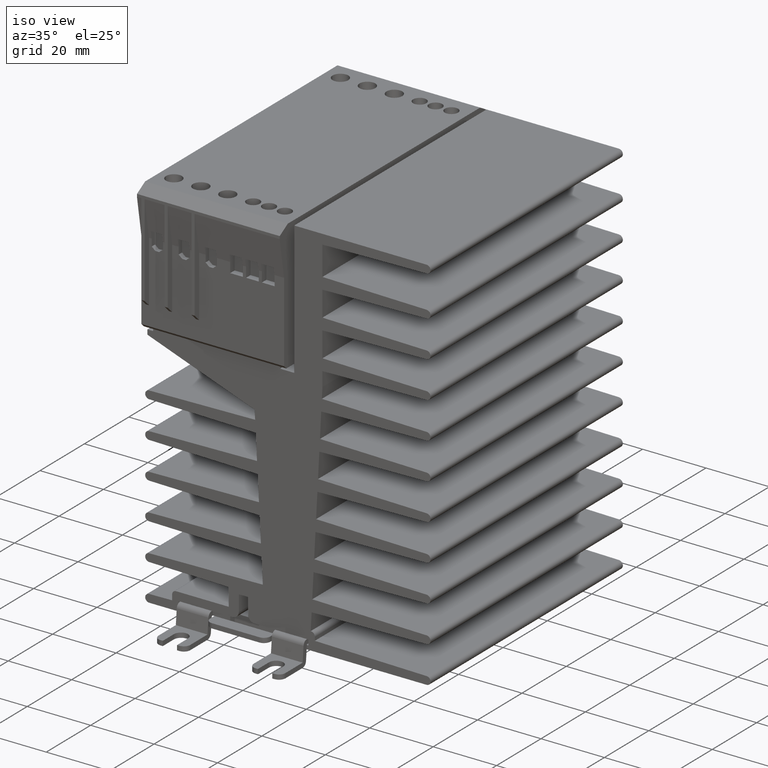
[diagram: clean part render]
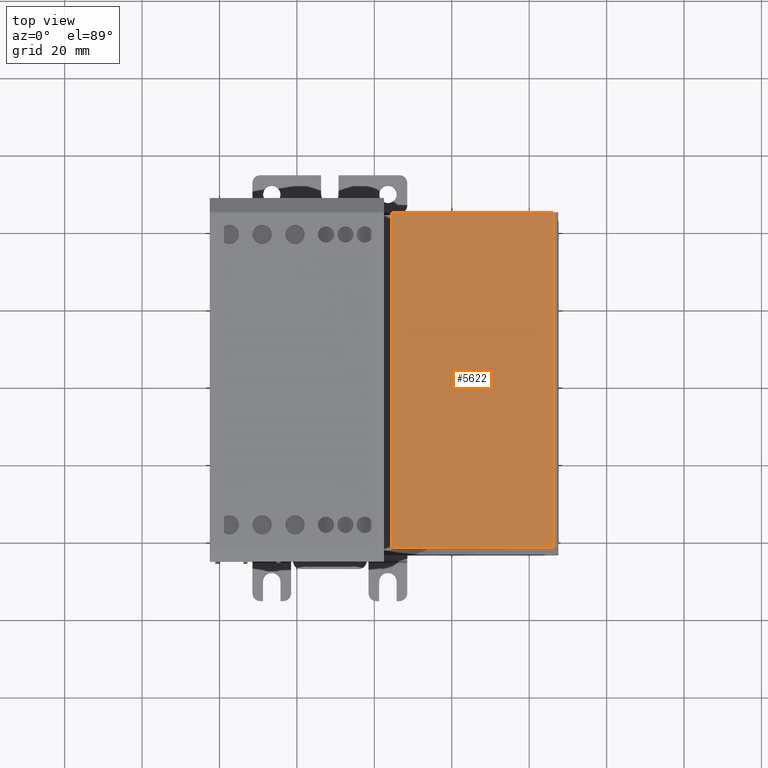
[diagram: tour spotlight — one face highlighted and labeled with its STEP entity id]
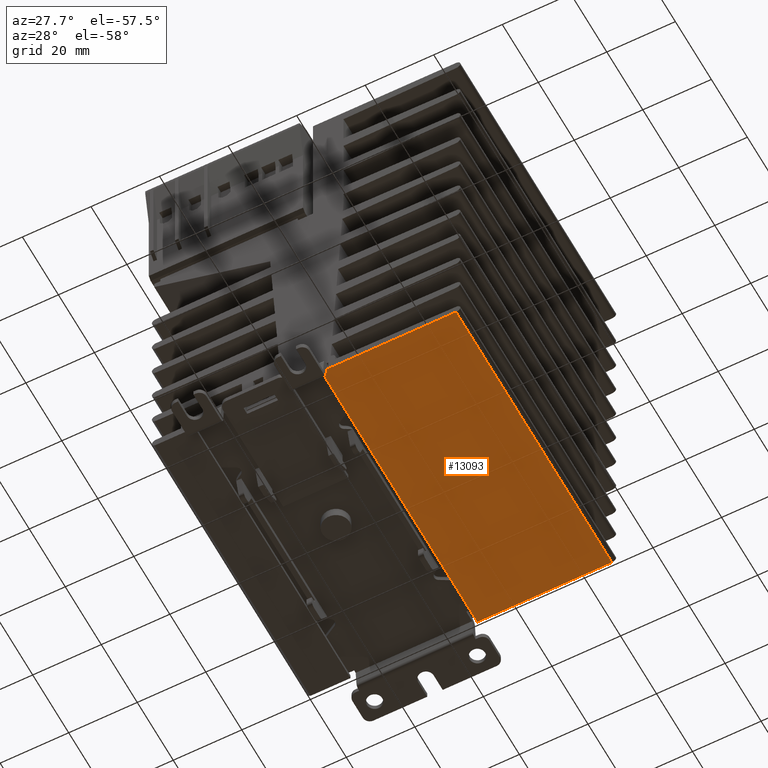
[diagram: tour spotlight — one face highlighted and labeled with its STEP entity id]
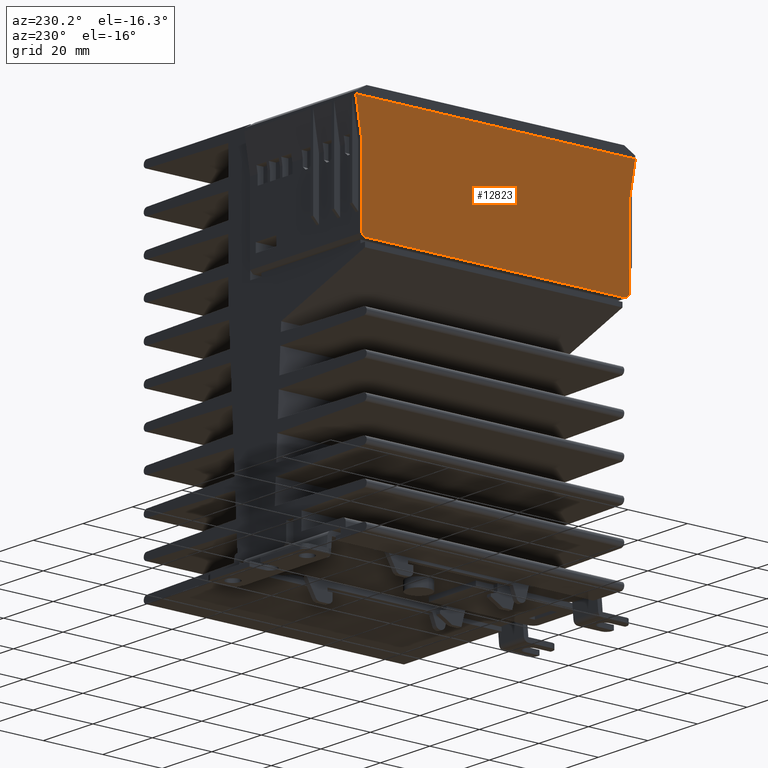
[diagram: tour spotlight — one face highlighted and labeled with its STEP entity id]
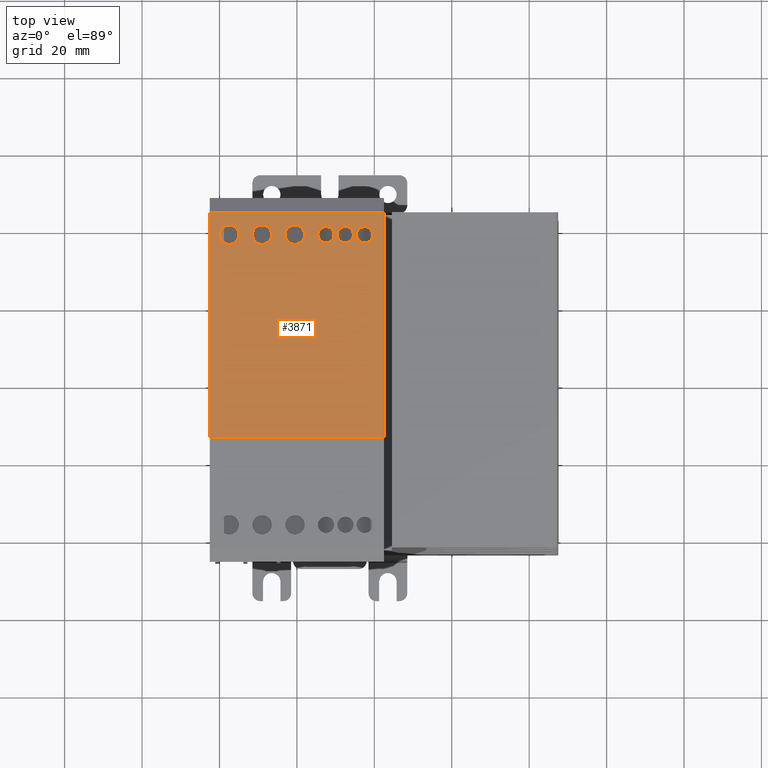
[diagram: tour spotlight — one face highlighted and labeled with its STEP entity id]
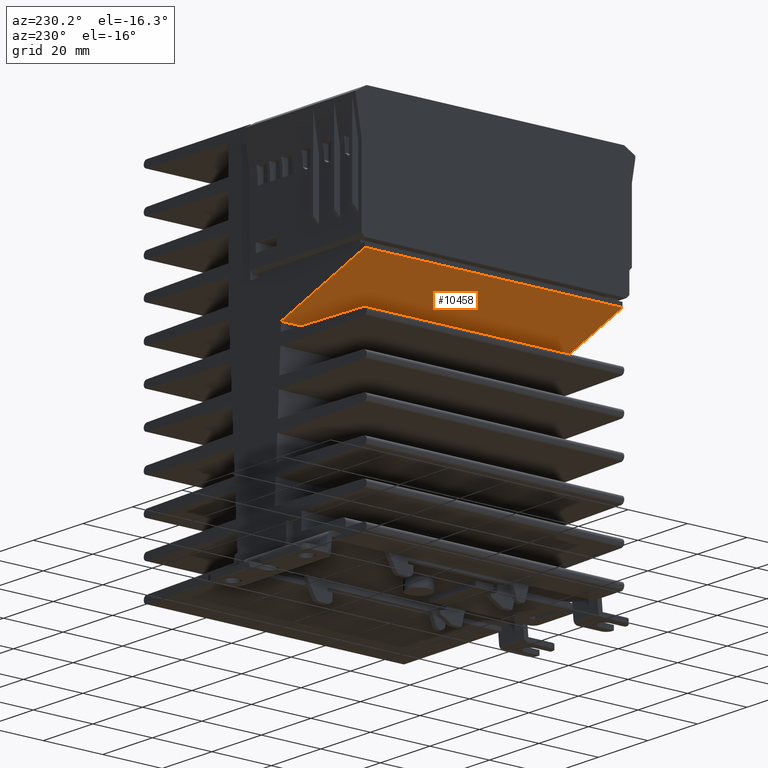
[diagram: tour spotlight — one face highlighted and labeled with its STEP entity id]
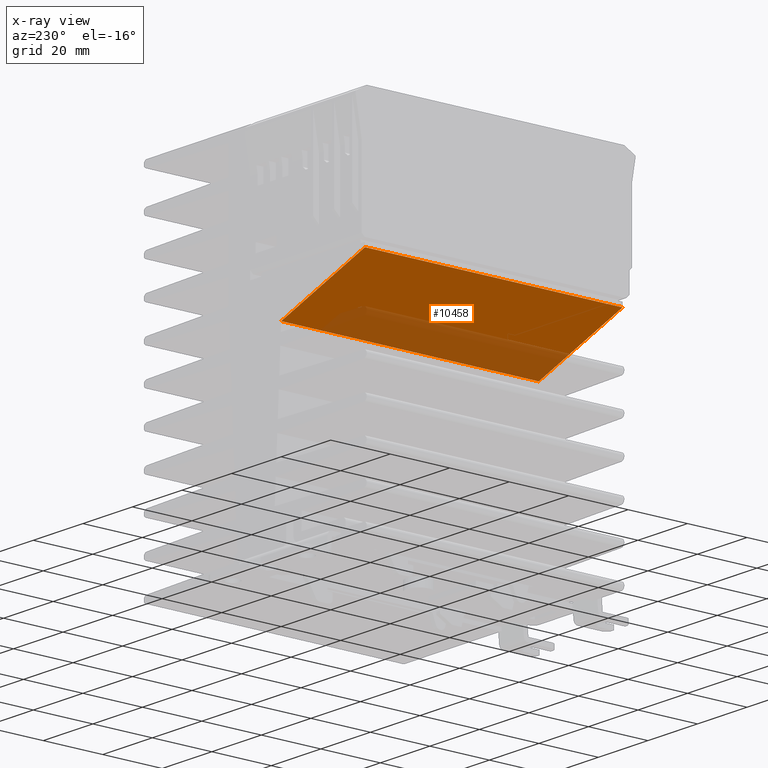
[diagram: x-ray of the same camera — body ghosted, this tour face saturated]
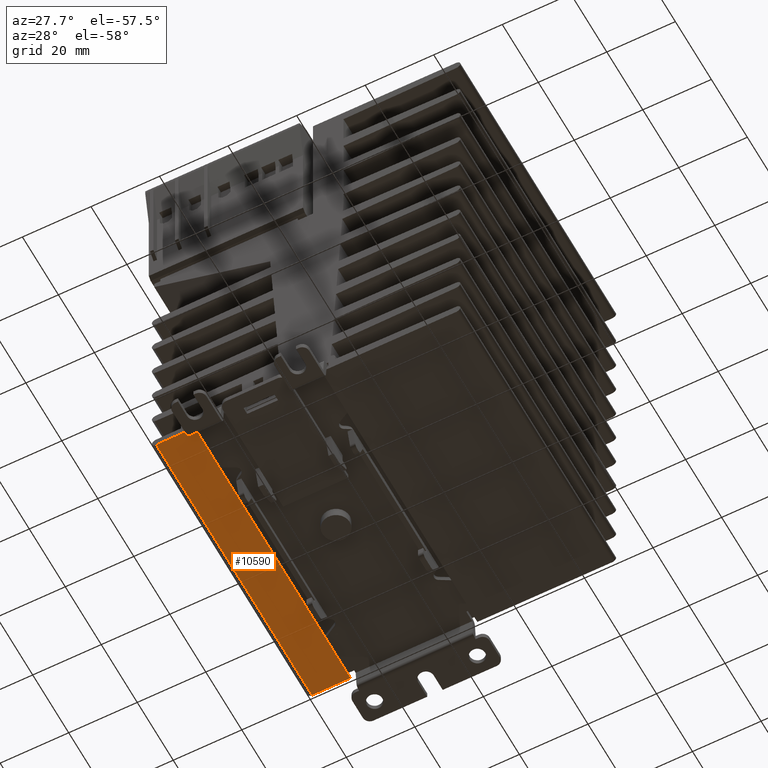
[diagram: tour spotlight — one face highlighted and labeled with its STEP entity id]
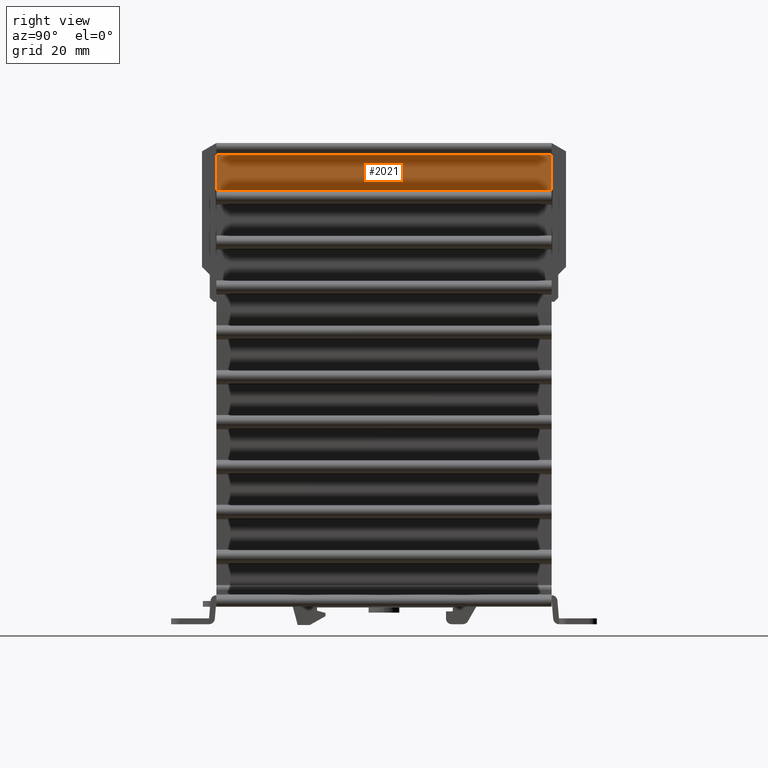
[diagram: tour spotlight — one face highlighted and labeled with its STEP entity id]
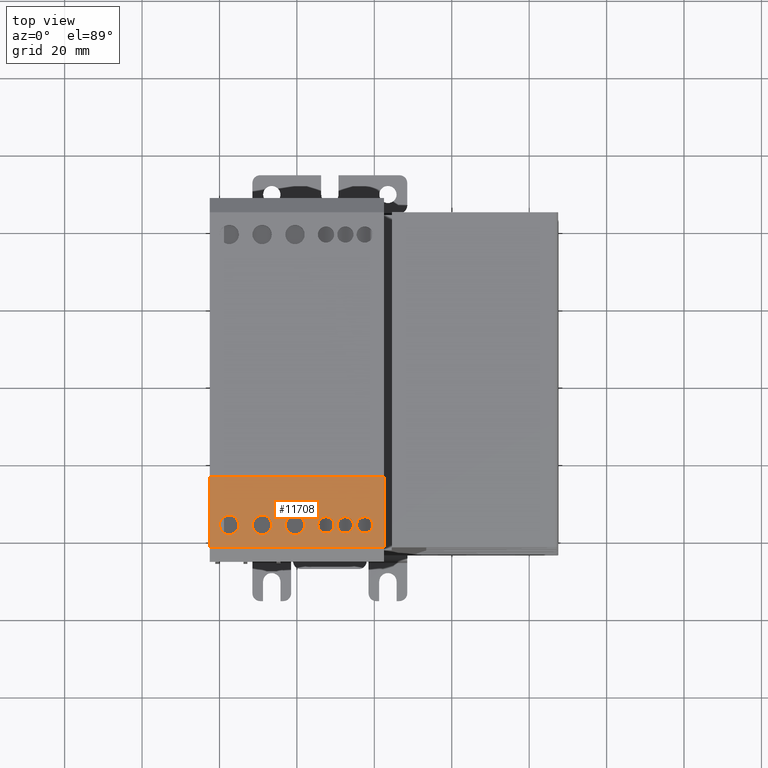
[diagram: tour spotlight — one face highlighted and labeled with its STEP entity id]
A machine part: a face-by-face anatomy tour. The part has 440 B-rep faces; the first image is the clean iso view, then the 8 largest visible faces are spotlighted one at a time (largest first), each with its STEP entity span.

Face 1 — top view, entity #5622. In plain terms, the highlighted planar face has unit normal (0, 0, 1).
Definition (entity closure, byte-faithful):
#1081 = EDGE_CURVE ( 'NONE', #10527, #12207, #5119, .T. ) ;
#1661 = VECTOR ( 'NONE', #6523, 39.37007874015748143 ) ;
#1730 = EDGE_CURVE ( 'NONE', #7987, #4895, #5533, .T. ) ;
#1992 = DIRECTION ( 'NONE',  ( -1.000000000000000000, 0.000000000000000000, 0.000000000000000000 ) ) ;
#3049 = CARTESIAN_POINT ( 'NONE',  ( 0.9645669291338583307, 0.000000000000000000, 1.614173228346456712 ) ) ;
#3265 = CARTESIAN_POINT ( 'NONE',  ( 2.608267716535433323, 0.000000000000000000, 1.614173228346456712 ) ) ;
#3298 = CARTESIAN_POINT ( 'NONE',  ( 0.9645669291338583307, -1.704724409448818978, 1.614173228346456712 ) ) ;
#3404 = CARTESIAN_POINT ( 'NONE',  ( 2.608267716535433323, -1.704724409448818978, 1.614173228346456712 ) ) ;
#3651 = EDGE_LOOP ( 'NONE', ( #6385, #13997, #6572, #8392 ) ) ;
#4054 = AXIS2_PLACEMENT_3D ( 'NONE', #8437, #5299, #4298 ) ;
#4219 = CARTESIAN_POINT ( 'NONE',  ( 0.9645669291338583307, 1.704724409448818978, 1.614173228346456712 ) ) ;
#4298 = DIRECTION ( 'NONE',  ( -1.000000000000000000, 0.000000000000000000, 0.000000000000000000 ) ) ;
#4462 = CARTESIAN_POINT ( 'NONE',  ( 0.7772639863485630851, -1.704724409448818978, 1.614173228346456712 ) ) ;
#4801 = EDGE_CURVE ( 'NONE', #10527, #4895, #5332, .T. ) ;
#4895 = VERTEX_POINT ( 'NONE', #3404 ) ;
#5119 = LINE ( 'NONE', #6254, #10759 ) ;
#5264 = LINE ( 'NONE', #3049, #6098 ) ;
#5299 = DIRECTION ( 'NONE',  ( 0.000000000000000000, 0.000000000000000000, 1.000000000000000000 ) ) ;
#5332 = LINE ( 'NONE', #3265, #7438 ) ;
#5533 = LINE ( 'NONE', #4462, #1661 ) ;
#5622 = ADVANCED_FACE ( 'NONE', ( #10726 ), #11654, .T. ) ;
#6098 = VECTOR ( 'NONE', #11906, 39.37007874015748143 ) ;
#6254 = CARTESIAN_POINT ( 'NONE',  ( 2.608267716535433323, 1.704724409448818978, 1.614173228346456712 ) ) ;
#6385 = ORIENTED_EDGE ( 'NONE', *, *, #4801, .F. ) ;
#6523 = DIRECTION ( 'NONE',  ( 1.000000000000000000, -0.000000000000000000, -0.000000000000000000 ) ) ;
#6572 = ORIENTED_EDGE ( 'NONE', *, *, #7082, .T. ) ;
#7082 = EDGE_CURVE ( 'NONE', #12207, #7987, #5264, .T. ) ;
#7397 = DIRECTION ( 'NONE',  ( 0.000000000000000000, -1.000000000000000000, 0.000000000000000000 ) ) ;
#7438 = VECTOR ( 'NONE', #7397, 39.37007874015748143 ) ;
#7987 = VERTEX_POINT ( 'NONE', #3298 ) ;
#8392 = ORIENTED_EDGE ( 'NONE', *, *, #1730, .T. ) ;
#8437 = CARTESIAN_POINT ( 'NONE',  ( 2.608267716535433323, 0.000000000000000000, 1.614173228346456712 ) ) ;
#10527 = VERTEX_POINT ( 'NONE', #12942 ) ;
#10726 = FACE_OUTER_BOUND ( 'NONE', #3651, .T. ) ;
#10759 = VECTOR ( 'NONE', #1992, 39.37007874015748143 ) ;
#11654 = PLANE ( 'NONE',  #4054 ) ;
#11906 = DIRECTION ( 'NONE',  ( 0.000000000000000000, -1.000000000000000000, 0.000000000000000000 ) ) ;
#12207 = VERTEX_POINT ( 'NONE', #4219 ) ;
#12942 = CARTESIAN_POINT ( 'NONE',  ( 2.608267716535433323, 1.704724409448818978, 1.614173228346456712 ) ) ;
#13997 = ORIENTED_EDGE ( 'NONE', *, *, #1081, .T. ) ;

Face 2 — auxiliary view, entity #13093. In plain terms, the highlighted planar face has unit normal (0, 0, -1).
Definition (entity closure, byte-faithful):
#318 = AXIS2_PLACEMENT_3D ( 'NONE', #12249, #6885, #7670 ) ;
#449 = CARTESIAN_POINT ( 'NONE',  ( 1.062992125984252079, 1.704724409448818978, -3.100393700787401841 ) ) ;
#1265 = FACE_OUTER_BOUND ( 'NONE', #8538, .T. ) ;
#1626 = VECTOR ( 'NONE', #7810, 39.37007874015748143 ) ;
#1984 = VECTOR ( 'NONE', #8386, 39.37007874015748143 ) ;
#2757 = LINE ( 'NONE', #10396, #13389 ) ;
#3468 = VERTEX_POINT ( 'NONE', #11688 ) ;
#4033 = LINE ( 'NONE', #5173, #1984 ) ;
#4646 = DIRECTION ( 'NONE',  ( 1.000000000000000000, 0.000000000000000000, 0.000000000000000000 ) ) ;
#4755 = ORIENTED_EDGE ( 'NONE', *, *, #5010, .T. ) ;
#5010 = EDGE_CURVE ( 'NONE', #13033, #10210, #4033, .T. ) ;
#5134 = EDGE_CURVE ( 'NONE', #3468, #13033, #2757, .T. ) ;
#5173 = CARTESIAN_POINT ( 'NONE',  ( 0.7772639863485630851, -1.704724409448818978, -3.100393700787401841 ) ) ;
#5644 = LINE ( 'NONE', #449, #6188 ) ;
#5753 = CARTESIAN_POINT ( 'NONE',  ( 2.608267716535433323, -1.704724409448818978, -3.100393700787401841 ) ) ;
#6188 = VECTOR ( 'NONE', #4646, 39.37007874015748143 ) ;
#6393 = VERTEX_POINT ( 'NONE', #7589 ) ;
#6885 = DIRECTION ( 'NONE',  ( 0.000000000000000000, 0.000000000000000000, -1.000000000000000000 ) ) ;
#7107 = DIRECTION ( 'NONE',  ( 0.000000000000000000, -1.000000000000000000, 0.000000000000000000 ) ) ;
#7589 = CARTESIAN_POINT ( 'NONE',  ( 1.062992125984252079, 1.704724409448818978, -3.100393700787401841 ) ) ;
#7670 = DIRECTION ( 'NONE',  ( 1.000000000000000000, 0.000000000000000000, 0.000000000000000000 ) ) ;
#7810 = DIRECTION ( 'NONE',  ( -0.000000000000000000, 1.000000000000000000, -0.000000000000000000 ) ) ;
#8386 = DIRECTION ( 'NONE',  ( -1.000000000000000000, 0.000000000000000000, 0.000000000000000000 ) ) ;
#8538 = EDGE_LOOP ( 'NONE', ( #13967, #12459, #4755, #9827 ) ) ;
#9827 = ORIENTED_EDGE ( 'NONE', *, *, #10263, .T. ) ;
#9958 = PLANE ( 'NONE',  #318 ) ;
#10172 = LINE ( 'NONE', #13597, #1626 ) ;
#10210 = VERTEX_POINT ( 'NONE', #10314 ) ;
#10263 = EDGE_CURVE ( 'NONE', #10210, #6393, #10172, .T. ) ;
#10314 = CARTESIAN_POINT ( 'NONE',  ( 1.062992125984252079, -1.704724409448818978, -3.100393700787401841 ) ) ;
#10396 = CARTESIAN_POINT ( 'NONE',  ( 2.608267716535433323, 0.000000000000000000, -3.100393700787401841 ) ) ;
#11688 = CARTESIAN_POINT ( 'NONE',  ( 2.608267716535433323, 1.704724409448818978, -3.100393700787401841 ) ) ;
#12249 = CARTESIAN_POINT ( 'NONE',  ( 1.062992125984252079, 0.000000000000000000, -3.100393700787401841 ) ) ;
#12282 = EDGE_CURVE ( 'NONE', #6393, #3468, #5644, .T. ) ;
#12459 = ORIENTED_EDGE ( 'NONE', *, *, #5134, .T. ) ;
#13033 = VERTEX_POINT ( 'NONE', #5753 ) ;
#13093 = ADVANCED_FACE ( 'NONE', ( #1265 ), #9958, .T. ) ;
#13389 = VECTOR ( 'NONE', #7107, 39.37007874015748143 ) ;
#13597 = CARTESIAN_POINT ( 'NONE',  ( 1.062992125984252079, 0.000000000000000000, -3.100393700787401841 ) ) ;
#13967 = ORIENTED_EDGE ( 'NONE', *, *, #12282, .T. ) ;

Face 3 — auxiliary view, entity #12823. In plain terms, the highlighted planar face has unit normal (-1, 0, 0).
Definition (entity closure, byte-faithful):
#299 = CARTESIAN_POINT ( 'NONE',  ( -0.8858267716535432879, 1.771653543307086576, 1.496062992125984259 ) ) ;
#939 = EDGE_CURVE ( 'NONE', #6784, #13497, #10132, .T. ) ;
#1700 = EDGE_CURVE ( 'NONE', #10160, #4716, #5074, .T. ) ;
#1773 = PLANE ( 'NONE',  #7798 ) ;
#1926 = EDGE_CURVE ( 'NONE', #10160, #13497, #6340, .T. ) ;
#2050 = CARTESIAN_POINT ( 'NONE',  ( -0.8858267716535432879, 1.732283464566929165, 0.000000000000000000 ) ) ;
#2252 = LINE ( 'NONE', #6588, #11082 ) ;
#2403 = LINE ( 'NONE', #4683, #11992 ) ;
#2951 = ORIENTED_EDGE ( 'NONE', *, *, #1926, .F. ) ;
#2976 = CARTESIAN_POINT ( 'NONE',  ( -0.8858267716535432879, -1.732283464566929165, 0.000000000000000000 ) ) ;
#3128 = DIRECTION ( 'NONE',  ( 0.000000000000000000, 0.7071067811865510144, 0.7071067811865440200 ) ) ;
#3166 = VERTEX_POINT ( 'NONE', #5481 ) ;
#3330 = LINE ( 'NONE', #8610, #13074 ) ;
#3350 = VECTOR ( 'NONE', #12220, 39.37007874015748143 ) ;
#3487 = CARTESIAN_POINT ( 'NONE',  ( -0.8858267716535432879, -1.771653543307086576, 1.496062992125984259 ) ) ;
#3557 = ORIENTED_EDGE ( 'NONE', *, *, #4154, .T. ) ;
#3692 = EDGE_CURVE ( 'NONE', #6722, #7140, #2403, .T. ) ;
#3841 = DIRECTION ( 'NONE',  ( 0.000000000000000000, 0.000000000000000000, 1.000000000000000000 ) ) ;
#4154 = EDGE_CURVE ( 'NONE', #3166, #6784, #2252, .T. ) ;
#4408 = DIRECTION ( 'NONE',  ( 0.000000000000000000, -0.7071067811865510144, 0.7071067811865440200 ) ) ;
#4437 = CARTESIAN_POINT ( 'NONE',  ( -0.8858267716535432879, -1.771653543307086576, 1.031496062992126150 ) ) ;
#4683 = CARTESIAN_POINT ( 'NONE',  ( -0.8858267716535432879, -1.771653543307086576, 1.031496062992126150 ) ) ;
#4716 = VERTEX_POINT ( 'NONE', #2976 ) ;
#4838 = ORIENTED_EDGE ( 'NONE', *, *, #3692, .T. ) ;
#5074 = LINE ( 'NONE', #9426, #9396 ) ;
#5342 = CARTESIAN_POINT ( 'NONE',  ( -0.8858267716535432879, 1.771653543307086576, 0.03937007874015747977 ) ) ;
#5481 = CARTESIAN_POINT ( 'NONE',  ( -0.8858267716535432879, 1.850393700787401619, 1.496062992125984259 ) ) ;
#5688 = CARTESIAN_POINT ( 'NONE',  ( -0.8858267716535432879, -1.850393700787401619, 1.496062992125984259 ) ) ;
#5757 = DIRECTION ( 'NONE',  ( 0.000000000000000000, -0.1671082301075369203, 0.9859385576344634750 ) ) ;
#6340 = LINE ( 'NONE', #5342, #11263 ) ;
#6588 = CARTESIAN_POINT ( 'NONE',  ( -0.8858267716535432879, 1.850393700787401619, 1.496062992125984259 ) ) ;
#6713 = LINE ( 'NONE', #7573, #3350 ) ;
#6722 = VERTEX_POINT ( 'NONE', #4437 ) ;
#6784 = VERTEX_POINT ( 'NONE', #7857 ) ;
#6804 = EDGE_CURVE ( 'NONE', #3166, #7140, #6713, .T. ) ;
#7140 = VERTEX_POINT ( 'NONE', #5688 ) ;
#7279 = DIRECTION ( 'NONE',  ( -0.000000000000000000, -1.000000000000000000, -0.000000000000000000 ) ) ;
#7573 = CARTESIAN_POINT ( 'NONE',  ( -0.8858267716535432879, -1.132046456692913323E-16, 1.496062992125984259 ) ) ;
#7798 = AXIS2_PLACEMENT_3D ( 'NONE', #8119, #12480, #3841 ) ;
#7857 = CARTESIAN_POINT ( 'NONE',  ( -0.8858267716535432879, 1.771653543307086576, 1.031496062992126150 ) ) ;
#8119 = CARTESIAN_POINT ( 'NONE',  ( -0.8858267716535432879, -1.850393700787401619, 1.496062992125984259 ) ) ;
#8610 = CARTESIAN_POINT ( 'NONE',  ( -0.8858267716535432879, -1.771653543307086576, 0.03937007874015747977 ) ) ;
#8616 = LINE ( 'NONE', #3487, #8881 ) ;
#8881 = VECTOR ( 'NONE', #10977, 39.37007874015748143 ) ;
#8972 = ORIENTED_EDGE ( 'NONE', *, *, #9739, .T. ) ;
#9046 = VERTEX_POINT ( 'NONE', #11378 ) ;
#9396 = VECTOR ( 'NONE', #7279, 39.37007874015748143 ) ;
#9426 = CARTESIAN_POINT ( 'NONE',  ( -0.8858267716535432879, -1.850393700787401619, 0.000000000000000000 ) ) ;
#9739 = EDGE_CURVE ( 'NONE', #9046, #6722, #8616, .T. ) ;
#9831 = VECTOR ( 'NONE', #10060, 39.37007874015748143 ) ;
#9877 = DIRECTION ( 'NONE',  ( 0.000000000000000000, -0.1671082301075349774, -0.9859385576344639190 ) ) ;
#10029 = ORIENTED_EDGE ( 'NONE', *, *, #6804, .F. ) ;
#10060 = DIRECTION ( 'NONE',  ( -0.000000000000000000, -0.000000000000000000, -1.000000000000000000 ) ) ;
#10075 = CARTESIAN_POINT ( 'NONE',  ( -0.8858267716535432879, 1.771653543307086576, 0.03937007874015747977 ) ) ;
#10132 = LINE ( 'NONE', #299, #9831 ) ;
#10160 = VERTEX_POINT ( 'NONE', #2050 ) ;
#10977 = DIRECTION ( 'NONE',  ( 0.000000000000000000, 0.000000000000000000, 1.000000000000000000 ) ) ;
#11082 = VECTOR ( 'NONE', #9877, 39.37007874015748854 ) ;
#11263 = VECTOR ( 'NONE', #3128, 39.37007874015748143 ) ;
#11378 = CARTESIAN_POINT ( 'NONE',  ( -0.8858267716535432879, -1.771653543307086576, 0.03937007874015747977 ) ) ;
#11711 = ORIENTED_EDGE ( 'NONE', *, *, #939, .T. ) ;
#11992 = VECTOR ( 'NONE', #5757, 39.37007874015748143 ) ;
#12077 = EDGE_LOOP ( 'NONE', ( #4838, #10029, #3557, #11711, #2951, #12287, #13326, #8972 ) ) ;
#12220 = DIRECTION ( 'NONE',  ( -0.000000000000000000, -1.000000000000000000, -0.000000000000000000 ) ) ;
#12287 = ORIENTED_EDGE ( 'NONE', *, *, #1700, .T. ) ;
#12480 = DIRECTION ( 'NONE',  ( -1.000000000000000000, 0.000000000000000000, 0.000000000000000000 ) ) ;
#12823 = ADVANCED_FACE ( 'NONE', ( #13686 ), #1773, .T. ) ;
#13074 = VECTOR ( 'NONE', #4408, 39.37007874015748143 ) ;
#13326 = ORIENTED_EDGE ( 'NONE', *, *, #14046, .T. ) ;
#13497 = VERTEX_POINT ( 'NONE', #10075 ) ;
#13686 = FACE_OUTER_BOUND ( 'NONE', #12077, .T. ) ;
#14046 = EDGE_CURVE ( 'NONE', #4716, #9046, #3330, .T. ) ;

Face 4 — top view, entity #3871. In plain terms, the highlighted planar face has unit normal (0, 0, 1).
Definition (entity closure, byte-faithful):
#126 = CARTESIAN_POINT ( 'NONE',  ( -0.8858267716535432879, 1.704724409448818978, 1.614173228346456712 ) ) ;
#144 = VERTEX_POINT ( 'NONE', #3419 ) ;
#230 = CARTESIAN_POINT ( 'NONE',  ( -1.886744094488189036E-16, 1.704724409448818978, 1.614173228346456712 ) ) ;
#336 = EDGE_CURVE ( 'NONE', #2010, #1721, #577, .T. ) ;
#446 = AXIS2_PLACEMENT_3D ( 'NONE', #2655, #4727, #11223 ) ;
#577 = LINE ( 'NONE', #1640, #7997 ) ;
#599 = AXIS2_PLACEMENT_3D ( 'NONE', #10763, #5186, #11829 ) ;
#837 = EDGE_LOOP ( 'NONE', ( #10093, #13047 ) ) ;
#1171 = DIRECTION ( 'NONE',  ( -0.000000000000000000, -0.000000000000000000, -1.000000000000000000 ) ) ;
#1326 = EDGE_CURVE ( 'NONE', #1899, #1721, #9988, .T. ) ;
#1413 = CIRCLE ( 'NONE', #9374, 0.08267716535433075609 ) ;
#1608 = DIRECTION ( 'NONE',  ( 1.000000000000000000, 0.000000000000000000, 0.000000000000000000 ) ) ;
#1627 = VERTEX_POINT ( 'NONE', #7354 ) ;
#1640 = CARTESIAN_POINT ( 'NONE',  ( -0.8858267716535432879, 1.850393700787401619, 1.614173228346456712 ) ) ;
#1721 = VERTEX_POINT ( 'NONE', #126 ) ;
#1758 = PLANE ( 'NONE',  #10171 ) ;
#1842 = CARTESIAN_POINT ( 'NONE',  ( -0.7874015748031496509, 1.476377952755905554, 1.614173228346456712 ) ) ;
#1880 = EDGE_CURVE ( 'NONE', #11264, #144, #1928, .T. ) ;
#1899 = VERTEX_POINT ( 'NONE', #9766 ) ;
#1928 = CIRCLE ( 'NONE', #9664, 0.09842519685039372024 ) ;
#2002 = DIRECTION ( 'NONE',  ( 1.000000000000000000, 0.000000000000000000, 0.000000000000000000 ) ) ;
#2010 = VERTEX_POINT ( 'NONE', #13410 ) ;
#2330 = AXIS2_PLACEMENT_3D ( 'NONE', #8777, #11787, #8503 ) ;
#2387 = AXIS2_PLACEMENT_3D ( 'NONE', #7365, #12583, #5219 ) ;
#2485 = CIRCLE ( 'NONE', #7945, 0.09842519685039372024 ) ;
#2490 = DIRECTION ( 'NONE',  ( 0.000000000000000000, 1.000000000000000000, 0.000000000000000000 ) ) ;
#2610 = EDGE_CURVE ( 'NONE', #12050, #12780, #6936, .T. ) ;
#2655 = CARTESIAN_POINT ( 'NONE',  ( 0.4921259842519685179, 1.476377952755905554, 1.614173228346456712 ) ) ;
#2767 = EDGE_LOOP ( 'NONE', ( #10355, #9812 ) ) ;
#2825 = FACE_BOUND ( 'NONE', #5921, .T. ) ;
#2846 = EDGE_LOOP ( 'NONE', ( #7269, #10343 ) ) ;
#2894 = EDGE_CURVE ( 'NONE', #5058, #11422, #9685, .T. ) ;
#2985 = CARTESIAN_POINT ( 'NONE',  ( -0.2559055118110236116, 1.476377952755905554, 1.614173228346456712 ) ) ;
#3419 = CARTESIAN_POINT ( 'NONE',  ( -0.4527559055118110520, 1.476377952755905554, 1.614173228346456712 ) ) ;
#3424 = DIRECTION ( 'NONE',  ( -1.000000000000000000, -0.000000000000000000, -0.000000000000000000 ) ) ;
#3519 = EDGE_CURVE ( 'NONE', #5304, #6492, #9920, .T. ) ;
#3647 = EDGE_CURVE ( 'NONE', #12164, #8462, #8554, .T. ) ;
#3691 = DIRECTION ( 'NONE',  ( 1.000000000000000000, 0.000000000000000000, 0.000000000000000000 ) ) ;
#3697 = CIRCLE ( 'NONE', #2330, 0.08267716535433068670 ) ;
#3844 = CIRCLE ( 'NONE', #446, 0.08267716535433068670 ) ;
#3871 = ADVANCED_FACE ( 'NONE', ( #5102, #4030, #6034, #3892, #2825, #5030, #8382 ), #1758, .T. ) ;
#3892 = FACE_BOUND ( 'NONE', #837, .T. ) ;
#3990 = ORIENTED_EDGE ( 'NONE', *, *, #10472, .T. ) ;
#4030 = FACE_BOUND ( 'NONE', #2767, .T. ) ;
#4165 = CARTESIAN_POINT ( 'NONE',  ( 0.6889763779527560139, 1.476377952755905554, 1.614173228346456712 ) ) ;
#4206 = DIRECTION ( 'NONE',  ( -0.000000000000000000, -0.000000000000000000, -1.000000000000000000 ) ) ;
#4271 = DIRECTION ( 'NONE',  ( -0.000000000000000000, -0.000000000000000000, -1.000000000000000000 ) ) ;
#4356 = AXIS2_PLACEMENT_3D ( 'NONE', #4165, #1171, #7580 ) ;
#4365 = CARTESIAN_POINT ( 'NONE',  ( 0.7716535433070865757, 1.476377952755905554, 1.614173228346456712 ) ) ;
#4727 = DIRECTION ( 'NONE',  ( -0.000000000000000000, -0.000000000000000000, -1.000000000000000000 ) ) ;
#4799 = DIRECTION ( 'NONE',  ( -0.000000000000000000, -1.000000000000000000, -0.000000000000000000 ) ) ;
#5030 = FACE_BOUND ( 'NONE', #13911, .T. ) ;
#5058 = VERTEX_POINT ( 'NONE', #9315 ) ;
#5102 = FACE_BOUND ( 'NONE', #2846, .T. ) ;
#5144 = CARTESIAN_POINT ( 'NONE',  ( -0.5905511811023621549, 1.476377952755905554, 1.614173228346456712 ) ) ;
#5186 = DIRECTION ( 'NONE',  ( -0.000000000000000000, -0.000000000000000000, -1.000000000000000000 ) ) ;
#5219 = DIRECTION ( 'NONE',  ( 1.000000000000000000, 0.000000000000000000, 0.000000000000000000 ) ) ;
#5241 = CARTESIAN_POINT ( 'NONE',  ( 0.3779527559055118058, 1.476377952755905554, 1.614173228346456712 ) ) ;
#5304 = VERTEX_POINT ( 'NONE', #5241 ) ;
#5374 = EDGE_LOOP ( 'NONE', ( #3990, #14030 ) ) ;
#5410 = CARTESIAN_POINT ( 'NONE',  ( -0.3543307086614173040, 1.476377952755905554, 1.614173228346456712 ) ) ;
#5489 = CARTESIAN_POINT ( 'NONE',  ( 0.07874015748031495954, 1.476377952755905554, 1.614173228346456712 ) ) ;
#5550 = VERTEX_POINT ( 'NONE', #11513 ) ;
#5921 = EDGE_LOOP ( 'NONE', ( #11415, #13227 ) ) ;
#6034 = FACE_BOUND ( 'NONE', #5374, .T. ) ;
#6131 = EDGE_CURVE ( 'NONE', #2010, #5550, #10393, .T. ) ;
#6267 = DIRECTION ( 'NONE',  ( 1.000000000000000000, 0.000000000000000000, 0.000000000000000000 ) ) ;
#6492 = VERTEX_POINT ( 'NONE', #9367 ) ;
#6797 = ORIENTED_EDGE ( 'NONE', *, *, #10650, .F. ) ;
#6823 = CARTESIAN_POINT ( 'NONE',  ( -0.3543307086614173040, 1.476377952755905554, 1.614173228346456712 ) ) ;
#6936 = CIRCLE ( 'NONE', #2387, 0.09842519685039372024 ) ;
#6982 = VECTOR ( 'NONE', #3691, 39.37007874015748143 ) ;
#7021 = DIRECTION ( 'NONE',  ( -0.000000000000000000, -0.000000000000000000, -1.000000000000000000 ) ) ;
#7057 = ORIENTED_EDGE ( 'NONE', *, *, #6131, .T. ) ;
#7147 = EDGE_CURVE ( 'NONE', #144, #11264, #11799, .T. ) ;
#7269 = ORIENTED_EDGE ( 'NONE', *, *, #8135, .T. ) ;
#7354 = CARTESIAN_POINT ( 'NONE',  ( 0.6062992125984253411, 1.476377952755905554, 1.614173228346456712 ) ) ;
#7365 = CARTESIAN_POINT ( 'NONE',  ( -0.6889763779527560139, 1.476377952755905554, 1.614173228346456712 ) ) ;
#7406 = CARTESIAN_POINT ( 'NONE',  ( 0.6889763779527560139, 1.476377952755905554, 1.614173228346456712 ) ) ;
#7580 = DIRECTION ( 'NONE',  ( 1.000000000000000000, 0.000000000000000000, 0.000000000000000000 ) ) ;
#7792 = ORIENTED_EDGE ( 'NONE', *, *, #8490, .T. ) ;
#7853 = DIRECTION ( 'NONE',  ( -0.000000000000000000, -0.000000000000000000, -1.000000000000000000 ) ) ;
#7924 = CARTESIAN_POINT ( 'NONE',  ( 0.4921259842519685179, 1.476377952755905554, 1.614173228346456712 ) ) ;
#7945 = AXIS2_PLACEMENT_3D ( 'NONE', #12989, #11133, #13132 ) ;
#7997 = VECTOR ( 'NONE', #2490, 39.37007874015748143 ) ;
#7999 = VECTOR ( 'NONE', #4799, 39.37007874015748143 ) ;
#8030 = DIRECTION ( 'NONE',  ( 1.000000000000000000, 0.000000000000000000, 0.000000000000000000 ) ) ;
#8135 = EDGE_CURVE ( 'NONE', #11422, #5058, #3844, .T. ) ;
#8169 = CARTESIAN_POINT ( 'NONE',  ( 0.5748031496062991907, 1.476377952755905554, 1.614173228346456712 ) ) ;
#8261 = ORIENTED_EDGE ( 'NONE', *, *, #1326, .T. ) ;
#8382 = FACE_OUTER_BOUND ( 'NONE', #13687, .T. ) ;
#8462 = VERTEX_POINT ( 'NONE', #5489 ) ;
#8490 = EDGE_CURVE ( 'NONE', #12780, #12050, #2485, .T. ) ;
#8503 = DIRECTION ( 'NONE',  ( 1.000000000000000000, 0.000000000000000000, 0.000000000000000000 ) ) ;
#8554 = CIRCLE ( 'NONE', #14026, 0.09842519685039370636 ) ;
#8777 = CARTESIAN_POINT ( 'NONE',  ( 0.2952755905511810774, 1.476377952755905554, 1.614173228346456712 ) ) ;
#9081 = EDGE_CURVE ( 'NONE', #8462, #12164, #9781, .T. ) ;
#9315 = CARTESIAN_POINT ( 'NONE',  ( 0.4094488188976378451, 1.476377952755905554, 1.614173228346456712 ) ) ;
#9367 = CARTESIAN_POINT ( 'NONE',  ( 0.2125984251968504046, 1.476377952755905554, 1.614173228346456712 ) ) ;
#9374 = AXIS2_PLACEMENT_3D ( 'NONE', #7406, #4271, #2002 ) ;
#9382 = DIRECTION ( 'NONE',  ( 0.000000000000000000, 0.000000000000000000, 1.000000000000000000 ) ) ;
#9664 = AXIS2_PLACEMENT_3D ( 'NONE', #5410, #4206, #6267 ) ;
#9685 = CIRCLE ( 'NONE', #10377, 0.08267716535433068670 ) ;
#9766 = CARTESIAN_POINT ( 'NONE',  ( 0.8858267716535432879, 1.704724409448818978, 1.614173228346456712 ) ) ;
#9781 = CIRCLE ( 'NONE', #12523, 0.09842519685039370636 ) ;
#9812 = ORIENTED_EDGE ( 'NONE', *, *, #12199, .T. ) ;
#9898 = DIRECTION ( 'NONE',  ( 1.000000000000000000, 0.000000000000000000, 0.000000000000000000 ) ) ;
#9920 = CIRCLE ( 'NONE', #599, 0.08267716535433068670 ) ;
#9988 = LINE ( 'NONE', #230, #10532 ) ;
#10093 = ORIENTED_EDGE ( 'NONE', *, *, #1880, .T. ) ;
#10111 = DIRECTION ( 'NONE',  ( -0.000000000000000000, -0.000000000000000000, -1.000000000000000000 ) ) ;
#10171 = AXIS2_PLACEMENT_3D ( 'NONE', #11389, #9382, #12738 ) ;
#10343 = ORIENTED_EDGE ( 'NONE', *, *, #2894, .T. ) ;
#10355 = ORIENTED_EDGE ( 'NONE', *, *, #3519, .T. ) ;
#10377 = AXIS2_PLACEMENT_3D ( 'NONE', #7924, #7853, #12289 ) ;
#10393 = LINE ( 'NONE', #13609, #6982 ) ;
#10472 = EDGE_CURVE ( 'NONE', #13316, #1627, #10514, .T. ) ;
#10514 = CIRCLE ( 'NONE', #4356, 0.08267716535433075609 ) ;
#10532 = VECTOR ( 'NONE', #3424, 39.37007874015748143 ) ;
#10650 = EDGE_CURVE ( 'NONE', #1899, #5550, #12373, .T. ) ;
#10763 = CARTESIAN_POINT ( 'NONE',  ( 0.2952755905511810774, 1.476377952755905554, 1.614173228346456712 ) ) ;
#10973 = DIRECTION ( 'NONE',  ( -0.000000000000000000, -0.000000000000000000, -1.000000000000000000 ) ) ;
#11133 = DIRECTION ( 'NONE',  ( -0.000000000000000000, -0.000000000000000000, -1.000000000000000000 ) ) ;
#11223 = DIRECTION ( 'NONE',  ( 1.000000000000000000, 0.000000000000000000, 0.000000000000000000 ) ) ;
#11264 = VERTEX_POINT ( 'NONE', #2985 ) ;
#11266 = EDGE_CURVE ( 'NONE', #1627, #13316, #1413, .T. ) ;
#11352 = ORIENTED_EDGE ( 'NONE', *, *, #2610, .T. ) ;
#11389 = CARTESIAN_POINT ( 'NONE',  ( -1.886744094488189036E-16, 2.364718897637795262E-16, 1.614173228346456712 ) ) ;
#11415 = ORIENTED_EDGE ( 'NONE', *, *, #9081, .T. ) ;
#11422 = VERTEX_POINT ( 'NONE', #8169 ) ;
#11513 = CARTESIAN_POINT ( 'NONE',  ( 0.8858267716535432879, -0.5905511811023621549, 1.614173228346456712 ) ) ;
#11516 = CARTESIAN_POINT ( 'NONE',  ( -0.01968503937007873988, 1.476377952755905554, 1.614173228346456712 ) ) ;
#11787 = DIRECTION ( 'NONE',  ( -0.000000000000000000, -0.000000000000000000, -1.000000000000000000 ) ) ;
#11799 = CIRCLE ( 'NONE', #13627, 0.09842519685039372024 ) ;
#11829 = DIRECTION ( 'NONE',  ( 1.000000000000000000, 0.000000000000000000, 0.000000000000000000 ) ) ;
#12050 = VERTEX_POINT ( 'NONE', #5144 ) ;
#12073 = CARTESIAN_POINT ( 'NONE',  ( -0.1181102362204724532, 1.476377952755905554, 1.614173228346456712 ) ) ;
#12164 = VERTEX_POINT ( 'NONE', #12073 ) ;
#12199 = EDGE_CURVE ( 'NONE', #6492, #5304, #3697, .T. ) ;
#12289 = DIRECTION ( 'NONE',  ( 1.000000000000000000, 0.000000000000000000, 0.000000000000000000 ) ) ;
#12298 = CARTESIAN_POINT ( 'NONE',  ( 0.8858267716535432879, -1.850393700787401619, 1.614173228346456712 ) ) ;
#12373 = LINE ( 'NONE', #12298, #7999 ) ;
#12523 = AXIS2_PLACEMENT_3D ( 'NONE', #11516, #7021, #1608 ) ;
#12583 = DIRECTION ( 'NONE',  ( -0.000000000000000000, -0.000000000000000000, -1.000000000000000000 ) ) ;
#12738 = DIRECTION ( 'NONE',  ( 1.000000000000000000, 0.000000000000000000, 0.000000000000000000 ) ) ;
#12780 = VERTEX_POINT ( 'NONE', #1842 ) ;
#12989 = CARTESIAN_POINT ( 'NONE',  ( -0.6889763779527560139, 1.476377952755905554, 1.614173228346456712 ) ) ;
#13047 = ORIENTED_EDGE ( 'NONE', *, *, #7147, .T. ) ;
#13132 = DIRECTION ( 'NONE',  ( 1.000000000000000000, 0.000000000000000000, 0.000000000000000000 ) ) ;
#13227 = ORIENTED_EDGE ( 'NONE', *, *, #3647, .T. ) ;
#13238 = ORIENTED_EDGE ( 'NONE', *, *, #336, .F. ) ;
#13316 = VERTEX_POINT ( 'NONE', #4365 ) ;
#13321 = CARTESIAN_POINT ( 'NONE',  ( -0.01968503937007873988, 1.476377952755905554, 1.614173228346456712 ) ) ;
#13410 = CARTESIAN_POINT ( 'NONE',  ( -0.8858267716535432879, -0.5905511811023621549, 1.614173228346456712 ) ) ;
#13609 = CARTESIAN_POINT ( 'NONE',  ( -1.886744094488189036E-16, -0.5905511811023621549, 1.614173228346456712 ) ) ;
#13627 = AXIS2_PLACEMENT_3D ( 'NONE', #6823, #10973, #9898 ) ;
#13687 = EDGE_LOOP ( 'NONE', ( #8261, #13238, #7057, #6797 ) ) ;
#13911 = EDGE_LOOP ( 'NONE', ( #11352, #7792 ) ) ;
#14026 = AXIS2_PLACEMENT_3D ( 'NONE', #13321, #10111, #8030 ) ;
#14030 = ORIENTED_EDGE ( 'NONE', *, *, #11266, .T. ) ;

Face 5 — auxiliary view, entity #10458. An x-ray twin of the same camera follows (body ghosted, this face saturated) — the face is partly hidden behind the body. In plain terms, the highlighted planar face has unit normal (-0.342, 0, -0.9397).
Definition (entity closure, byte-faithful):
#343 = VERTEX_POINT ( 'NONE', #11196 ) ;
#359 = ORIENTED_EDGE ( 'NONE', *, *, #13239, .T. ) ;
#1032 = DIRECTION ( 'NONE',  ( 0.9396926207859079838, 0.000000000000000000, -0.3420201433256699897 ) ) ;
#2031 = CARTESIAN_POINT ( 'NONE',  ( -0.8582677165354331006, 0.000000000000000000, -0.09842519685039370636 ) ) ;
#2110 = EDGE_LOOP ( 'NONE', ( #4182, #6301, #13755, #359 ) ) ;
#2339 = VECTOR ( 'NONE', #4324, 39.37007874015748143 ) ;
#3085 = CARTESIAN_POINT ( 'NONE',  ( -0.8582677165354331006, 1.704724409448818978, -0.09842519685039370636 ) ) ;
#3890 = CARTESIAN_POINT ( 'NONE',  ( 0.4735341752582031272, -1.704724409448818978, -0.5831614434026968219 ) ) ;
#4182 = ORIENTED_EDGE ( 'NONE', *, *, #9186, .T. ) ;
#4324 = DIRECTION ( 'NONE',  ( 0.000000000000000000, -1.000000000000000000, 0.000000000000000000 ) ) ;
#4549 = VECTOR ( 'NONE', #6297, 39.37007874015748143 ) ;
#4569 = VERTEX_POINT ( 'NONE', #9987 ) ;
#4894 = LINE ( 'NONE', #3890, #6903 ) ;
#5461 = CARTESIAN_POINT ( 'NONE',  ( 0.4735341752582039598, 0.000000000000000000, -0.5831614434026968219 ) ) ;
#6297 = DIRECTION ( 'NONE',  ( -0.000000000000000000, 1.000000000000000000, -0.000000000000000000 ) ) ;
#6301 = ORIENTED_EDGE ( 'NONE', *, *, #8595, .T. ) ;
#6368 = DIRECTION ( 'NONE',  ( -0.3420201433256699897, 0.000000000000000000, -0.9396926207859079838 ) ) ;
#6554 = VERTEX_POINT ( 'NONE', #12451 ) ;
#6903 = VECTOR ( 'NONE', #8245, 39.37007874015748143 ) ;
#7055 = DIRECTION ( 'NONE',  ( 0.9396926207859079838, 0.000000000000000000, -0.3420201433256699897 ) ) ;
#8245 = DIRECTION ( 'NONE',  ( -0.9396926207859080948, 0.000000000000000000, 0.3420201433256695456 ) ) ;
#8595 = EDGE_CURVE ( 'NONE', #9121, #6554, #13488, .T. ) ;
#9121 = VERTEX_POINT ( 'NONE', #3085 ) ;
#9186 = EDGE_CURVE ( 'NONE', #4569, #9121, #11729, .T. ) ;
#9399 = LINE ( 'NONE', #5461, #2339 ) ;
#9727 = FACE_OUTER_BOUND ( 'NONE', #2110, .T. ) ;
#9771 = VECTOR ( 'NONE', #7055, 39.37007874015748143 ) ;
#9987 = CARTESIAN_POINT ( 'NONE',  ( -0.8582677165354331006, -1.704724409448818978, -0.09842519685039370636 ) ) ;
#10458 = ADVANCED_FACE ( 'NONE', ( #9727 ), #10876, .T. ) ;
#10876 = PLANE ( 'NONE',  #12561 ) ;
#11196 = CARTESIAN_POINT ( 'NONE',  ( 0.4735341752582031272, -1.704724409448818978, -0.5831614434026968219 ) ) ;
#11345 = CARTESIAN_POINT ( 'NONE',  ( -0.8582677165354331006, 1.704724409448818978, -0.09842519685039370636 ) ) ;
#11729 = LINE ( 'NONE', #2031, #4549 ) ;
#12451 = CARTESIAN_POINT ( 'NONE',  ( 0.4735341752582031272, 1.704724409448818978, -0.5831614434026968219 ) ) ;
#12561 = AXIS2_PLACEMENT_3D ( 'NONE', #13944, #6368, #1032 ) ;
#12900 = EDGE_CURVE ( 'NONE', #6554, #343, #9399, .T. ) ;
#13239 = EDGE_CURVE ( 'NONE', #343, #4569, #4894, .T. ) ;
#13488 = LINE ( 'NONE', #11345, #9771 ) ;
#13755 = ORIENTED_EDGE ( 'NONE', *, *, #12900, .T. ) ;
#13944 = CARTESIAN_POINT ( 'NONE',  ( -0.8582677165354331006, 0.000000000000000000, -0.09842519685039370636 ) ) ;

Face 6 — auxiliary view, entity #10590. In plain terms, the highlighted planar face has unit normal (0, 0, -1).
Definition (entity closure, byte-faithful):
#177 = DIRECTION ( 'NONE',  ( 1.000000000000000000, 0.000000000000000000, 0.000000000000000000 ) ) ;
#322 = LINE ( 'NONE', #10939, #12306 ) ;
#764 = EDGE_CURVE ( 'NONE', #7551, #1002, #7308, .T. ) ;
#1002 = VERTEX_POINT ( 'NONE', #9265 ) ;
#1571 = CARTESIAN_POINT ( 'NONE',  ( -0.8366141732283465249, -1.704724409448818978, -3.100393700787401841 ) ) ;
#1769 = VECTOR ( 'NONE', #10869, 39.37007874015748143 ) ;
#2256 = CARTESIAN_POINT ( 'NONE',  ( -0.3937007874015748254, 1.704724409448818978, -3.100393700787401841 ) ) ;
#2447 = PLANE ( 'NONE',  #12111 ) ;
#3707 = EDGE_LOOP ( 'NONE', ( #11000, #4643, #5500, #11657 ) ) ;
#4296 = CARTESIAN_POINT ( 'NONE',  ( -0.8366141732283465249, 1.704724409448818978, -3.100393700787401841 ) ) ;
#4370 = LINE ( 'NONE', #4296, #13757 ) ;
#4643 = ORIENTED_EDGE ( 'NONE', *, *, #764, .T. ) ;
#5500 = ORIENTED_EDGE ( 'NONE', *, *, #9226, .T. ) ;
#5876 = CARTESIAN_POINT ( 'NONE',  ( -0.8366141732283465249, 0.000000000000000000, -3.100393700787401841 ) ) ;
#6631 = VECTOR ( 'NONE', #8319, 39.37007874015748143 ) ;
#6723 = EDGE_CURVE ( 'NONE', #10147, #13774, #13292, .T. ) ;
#6864 = DIRECTION ( 'NONE',  ( -1.000000000000000000, 0.000000000000000000, 0.000000000000000000 ) ) ;
#6865 = DIRECTION ( 'NONE',  ( 0.000000000000000000, 0.000000000000000000, -1.000000000000000000 ) ) ;
#7308 = LINE ( 'NONE', #8177, #6631 ) ;
#7551 = VERTEX_POINT ( 'NONE', #2256 ) ;
#8177 = CARTESIAN_POINT ( 'NONE',  ( -0.3937007874015748254, 0.000000000000000000, -3.100393700787401841 ) ) ;
#8319 = DIRECTION ( 'NONE',  ( 0.000000000000000000, -1.000000000000000000, 0.000000000000000000 ) ) ;
#9226 = EDGE_CURVE ( 'NONE', #1002, #13774, #322, .T. ) ;
#9265 = CARTESIAN_POINT ( 'NONE',  ( -0.3937007874015748254, -1.704724409448818978, -3.100393700787401841 ) ) ;
#9719 = CARTESIAN_POINT ( 'NONE',  ( -0.8366141732283465249, 0.000000000000000000, -3.100393700787401841 ) ) ;
#10147 = VERTEX_POINT ( 'NONE', #11821 ) ;
#10590 = ADVANCED_FACE ( 'NONE', ( #13365 ), #2447, .T. ) ;
#10869 = DIRECTION ( 'NONE',  ( 0.000000000000000000, -1.000000000000000000, 0.000000000000000000 ) ) ;
#10939 = CARTESIAN_POINT ( 'NONE',  ( 0.7772639863485630851, -1.704724409448818978, -3.100393700787401841 ) ) ;
#11000 = ORIENTED_EDGE ( 'NONE', *, *, #13729, .T. ) ;
#11657 = ORIENTED_EDGE ( 'NONE', *, *, #6723, .F. ) ;
#11821 = CARTESIAN_POINT ( 'NONE',  ( -0.8366141732283465249, 1.704724409448818978, -3.100393700787401841 ) ) ;
#12111 = AXIS2_PLACEMENT_3D ( 'NONE', #5876, #6865, #177 ) ;
#12306 = VECTOR ( 'NONE', #6864, 39.37007874015748143 ) ;
#13292 = LINE ( 'NONE', #9719, #1769 ) ;
#13365 = FACE_OUTER_BOUND ( 'NONE', #3707, .T. ) ;
#13729 = EDGE_CURVE ( 'NONE', #10147, #7551, #4370, .T. ) ;
#13757 = VECTOR ( 'NONE', #13866, 39.37007874015748143 ) ;
#13774 = VERTEX_POINT ( 'NONE', #1571 ) ;
#13866 = DIRECTION ( 'NONE',  ( 1.000000000000000000, 0.000000000000000000, 0.000000000000000000 ) ) ;

Face 7 — right view, entity #2021. In plain terms, the highlighted planar face has unit normal (1, 0, -0).
Definition (entity closure, byte-faithful):
#140 = DIRECTION ( 'NONE',  ( 0.000000000000000000, 0.000000000000000000, -1.000000000000000000 ) ) ;
#1133 = EDGE_CURVE ( 'NONE', #7098, #12699, #11818, .T. ) ;
#1217 = DIRECTION ( 'NONE',  ( 0.000000000000000000, 0.000000000000000000, 1.000000000000000000 ) ) ;
#1236 = ORIENTED_EDGE ( 'NONE', *, *, #13520, .T. ) ;
#1497 = DIRECTION ( 'NONE',  ( 1.000000000000000000, 0.000000000000000000, -0.000000000000000000 ) ) ;
#1699 = ORIENTED_EDGE ( 'NONE', *, *, #9773, .T. ) ;
#1768 = VERTEX_POINT ( 'NONE', #7447 ) ;
#2021 = ADVANCED_FACE ( 'NONE', ( #4556 ), #8904, .T. ) ;
#3196 = CARTESIAN_POINT ( 'NONE',  ( 1.314960629921259949, -1.704724409448818978, -0.7581509940322579411 ) ) ;
#3522 = AXIS2_PLACEMENT_3D ( 'NONE', #6836, #1497, #1217 ) ;
#4556 = FACE_OUTER_BOUND ( 'NONE', #12892, .T. ) ;
#4680 = DIRECTION ( 'NONE',  ( 0.000000000000000000, -1.000000000000000000, 0.000000000000000000 ) ) ;
#5719 = CARTESIAN_POINT ( 'NONE',  ( 1.314960629921259949, 1.704724409448818978, -0.1043307086614173318 ) ) ;
#5781 = CARTESIAN_POINT ( 'NONE',  ( 1.314960629921259949, -1.704724409448818978, 1.493165775868236400 ) ) ;
#6152 = DIRECTION ( 'NONE',  ( 0.000000000000000000, 0.000000000000000000, 1.000000000000000000 ) ) ;
#6211 = VECTOR ( 'NONE', #6152, 39.37007874015748143 ) ;
#6742 = CARTESIAN_POINT ( 'NONE',  ( 1.314960629921259949, 0.000000000000000000, 1.493165775868236400 ) ) ;
#6836 = CARTESIAN_POINT ( 'NONE',  ( 1.314960629921259949, 0.000000000000000000, -0.1043307086614173318 ) ) ;
#7098 = VERTEX_POINT ( 'NONE', #9825 ) ;
#7447 = CARTESIAN_POINT ( 'NONE',  ( 1.314960629921259949, 1.704724409448818978, 1.493165775868236400 ) ) ;
#7753 = LINE ( 'NONE', #3196, #12993 ) ;
#7815 = LINE ( 'NONE', #6742, #8714 ) ;
#8046 = CARTESIAN_POINT ( 'NONE',  ( 1.314960629921259949, 1.704724409448818978, 1.130849972163261885 ) ) ;
#8664 = DIRECTION ( 'NONE',  ( -0.000000000000000000, 1.000000000000000000, -0.000000000000000000 ) ) ;
#8714 = VECTOR ( 'NONE', #4680, 39.37007874015748143 ) ;
#8904 = PLANE ( 'NONE',  #3522 ) ;
#9773 = EDGE_CURVE ( 'NONE', #13784, #7098, #7753, .T. ) ;
#9825 = CARTESIAN_POINT ( 'NONE',  ( 1.314960629921259949, -1.704724409448818978, 1.130849972163261885 ) ) ;
#9844 = VECTOR ( 'NONE', #8664, 39.37007874015748143 ) ;
#11141 = LINE ( 'NONE', #5719, #6211 ) ;
#11407 = ORIENTED_EDGE ( 'NONE', *, *, #13129, .T. ) ;
#11781 = ORIENTED_EDGE ( 'NONE', *, *, #1133, .T. ) ;
#11818 = LINE ( 'NONE', #13091, #9844 ) ;
#12699 = VERTEX_POINT ( 'NONE', #8046 ) ;
#12892 = EDGE_LOOP ( 'NONE', ( #11407, #1699, #11781, #1236 ) ) ;
#12993 = VECTOR ( 'NONE', #140, 39.37007874015748143 ) ;
#13091 = CARTESIAN_POINT ( 'NONE',  ( 1.314960629921259949, 0.000000000000000000, 1.130849972163261885 ) ) ;
#13129 = EDGE_CURVE ( 'NONE', #1768, #13784, #7815, .T. ) ;
#13520 = EDGE_CURVE ( 'NONE', #12699, #1768, #11141, .T. ) ;
#13784 = VERTEX_POINT ( 'NONE', #5781 ) ;

Face 8 — top view, entity #11708. In plain terms, the highlighted planar face has unit normal (0, 0, 1).
Definition (entity closure, byte-faithful):
#35 = FACE_BOUND ( 'NONE', #8202, .T. ) ;
#179 = FACE_OUTER_BOUND ( 'NONE', #7335, .T. ) ;
#205 = VECTOR ( 'NONE', #7002, 39.37007874015748143 ) ;
#399 = VERTEX_POINT ( 'NONE', #12826 ) ;
#444 = DIRECTION ( 'NONE',  ( 1.000000000000000000, 0.000000000000000000, 0.000000000000000000 ) ) ;
#499 = AXIS2_PLACEMENT_3D ( 'NONE', #11735, #2882, #1970 ) ;
#501 = VERTEX_POINT ( 'NONE', #10835 ) ;
#544 = CARTESIAN_POINT ( 'NONE',  ( 0.6889763779527560139, -1.476377952755905554, 1.614173228346456712 ) ) ;
#604 = LINE ( 'NONE', #12718, #1867 ) ;
#852 = AXIS2_PLACEMENT_3D ( 'NONE', #544, #11512, #11236 ) ;
#879 = VERTEX_POINT ( 'NONE', #5632 ) ;
#942 = CARTESIAN_POINT ( 'NONE',  ( 0.6889763779527560139, -1.476377952755905554, 1.614173228346456712 ) ) ;
#960 = LINE ( 'NONE', #10589, #1801 ) ;
#1100 = EDGE_CURVE ( 'NONE', #8395, #5252, #12121, .T. ) ;
#1104 = FACE_BOUND ( 'NONE', #8029, .T. ) ;
#1211 = ORIENTED_EDGE ( 'NONE', *, *, #12055, .F. ) ;
#1352 = CIRCLE ( 'NONE', #10462, 0.08267716535433075609 ) ;
#1541 = VERTEX_POINT ( 'NONE', #6107 ) ;
#1613 = AXIS2_PLACEMENT_3D ( 'NONE', #6703, #2430, #6774 ) ;
#1631 = AXIS2_PLACEMENT_3D ( 'NONE', #4379, #11944, #8725 ) ;
#1657 = VERTEX_POINT ( 'NONE', #2726 ) ;
#1788 = CARTESIAN_POINT ( 'NONE',  ( -0.3543307086614173040, -1.476377952755905554, 1.614173228346456712 ) ) ;
#1801 = VECTOR ( 'NONE', #6364, 39.37007874015748143 ) ;
#1809 = AXIS2_PLACEMENT_3D ( 'NONE', #3570, #8129, #444 ) ;
#1867 = VECTOR ( 'NONE', #4944, 39.37007874015748143 ) ;
#1970 = DIRECTION ( 'NONE',  ( 1.000000000000000000, 0.000000000000000000, 0.000000000000000000 ) ) ;
#2184 = EDGE_CURVE ( 'NONE', #879, #1657, #3280, .T. ) ;
#2236 = VERTEX_POINT ( 'NONE', #5912 ) ;
#2279 = ORIENTED_EDGE ( 'NONE', *, *, #2184, .T. ) ;
#2325 = DIRECTION ( 'NONE',  ( 1.000000000000000000, 0.000000000000000000, 0.000000000000000000 ) ) ;
#2376 = EDGE_LOOP ( 'NONE', ( #8602, #10023 ) ) ;
#2425 = DIRECTION ( 'NONE',  ( -0.000000000000000000, -0.000000000000000000, -1.000000000000000000 ) ) ;
#2430 = DIRECTION ( 'NONE',  ( -0.000000000000000000, -0.000000000000000000, -1.000000000000000000 ) ) ;
#2697 = ORIENTED_EDGE ( 'NONE', *, *, #11633, .T. ) ;
#2726 = CARTESIAN_POINT ( 'NONE',  ( 0.4094488188976378451, -1.476377952755905554, 1.614173228346456712 ) ) ;
#2739 = CIRCLE ( 'NONE', #1613, 0.09842519685039372024 ) ;
#2882 = DIRECTION ( 'NONE',  ( -0.000000000000000000, -0.000000000000000000, -1.000000000000000000 ) ) ;
#2886 = VERTEX_POINT ( 'NONE', #7995 ) ;
#2977 = DIRECTION ( 'NONE',  ( 1.000000000000000000, 0.000000000000000000, 0.000000000000000000 ) ) ;
#3280 = CIRCLE ( 'NONE', #4424, 0.08267716535433068670 ) ;
#3355 = DIRECTION ( 'NONE',  ( 1.000000000000000000, 0.000000000000000000, 0.000000000000000000 ) ) ;
#3386 = DIRECTION ( 'NONE',  ( -0.000000000000000000, -0.000000000000000000, -1.000000000000000000 ) ) ;
#3543 = ORIENTED_EDGE ( 'NONE', *, *, #12588, .F. ) ;
#3569 = AXIS2_PLACEMENT_3D ( 'NONE', #9125, #2425, #13273 ) ;
#3570 = CARTESIAN_POINT ( 'NONE',  ( -0.6889763779527560139, -1.476377952755905554, 1.614173228346456712 ) ) ;
#3632 = CIRCLE ( 'NONE', #1809, 0.09842519685039372024 ) ;
#3787 = EDGE_LOOP ( 'NONE', ( #2279, #12642 ) ) ;
#3811 = CARTESIAN_POINT ( 'NONE',  ( 0.2952755905511810774, -1.476377952755905554, 1.614173228346456712 ) ) ;
#4039 = AXIS2_PLACEMENT_3D ( 'NONE', #7264, #11221, #2977 ) ;
#4083 = DIRECTION ( 'NONE',  ( 1.000000000000000000, 0.000000000000000000, 0.000000000000000000 ) ) ;
#4087 = CARTESIAN_POINT ( 'NONE',  ( -0.5905511811023621549, -1.476377952755905554, 1.614173228346456712 ) ) ;
#4315 = CARTESIAN_POINT ( 'NONE',  ( 0.07874015748031495954, -1.476377952755905554, 1.614173228346456712 ) ) ;
#4379 = CARTESIAN_POINT ( 'NONE',  ( -1.886744094488189036E-16, 2.364718897637795262E-16, 1.614173228346456712 ) ) ;
#4396 = ORIENTED_EDGE ( 'NONE', *, *, #6890, .T. ) ;
#4424 = AXIS2_PLACEMENT_3D ( 'NONE', #5984, #4980, #8121 ) ;
#4496 = DIRECTION ( 'NONE',  ( -0.000000000000000000, -0.000000000000000000, -1.000000000000000000 ) ) ;
#4510 = EDGE_CURVE ( 'NONE', #7861, #8539, #5609, .T. ) ;
#4638 = CIRCLE ( 'NONE', #7818, 0.08267716535433068670 ) ;
#4666 = ORIENTED_EDGE ( 'NONE', *, *, #1100, .T. ) ;
#4938 = LINE ( 'NONE', #13507, #205 ) ;
#4944 = DIRECTION ( 'NONE',  ( -0.000000000000000000, -1.000000000000000000, -0.000000000000000000 ) ) ;
#4980 = DIRECTION ( 'NONE',  ( -0.000000000000000000, -0.000000000000000000, -1.000000000000000000 ) ) ;
#5113 = ORIENTED_EDGE ( 'NONE', *, *, #9645, .T. ) ;
#5195 = ORIENTED_EDGE ( 'NONE', *, *, #8384, .T. ) ;
#5252 = VERTEX_POINT ( 'NONE', #4315 ) ;
#5283 = CIRCLE ( 'NONE', #13491, 0.08267716535433068670 ) ;
#5399 = CIRCLE ( 'NONE', #852, 0.08267716535433075609 ) ;
#5418 = CARTESIAN_POINT ( 'NONE',  ( -0.1181102362204724532, -1.476377952755905554, 1.614173228346456712 ) ) ;
#5443 = FACE_BOUND ( 'NONE', #2376, .T. ) ;
#5609 = CIRCLE ( 'NONE', #3569, 0.09842519685039372024 ) ;
#5632 = CARTESIAN_POINT ( 'NONE',  ( 0.5748031496062991907, -1.476377952755905554, 1.614173228346456712 ) ) ;
#5891 = CARTESIAN_POINT ( 'NONE',  ( 0.7716535433070865757, -1.476377952755905554, 1.614173228346456712 ) ) ;
#5912 = CARTESIAN_POINT ( 'NONE',  ( 0.8858267716535432879, -0.9842519685039370358, 1.614173228346456712 ) ) ;
#5984 = CARTESIAN_POINT ( 'NONE',  ( 0.4921259842519685179, -1.476377952755905554, 1.614173228346456712 ) ) ;
#6107 = CARTESIAN_POINT ( 'NONE',  ( -0.8858267716535432879, -0.9842519685039370358, 1.614173228346456712 ) ) ;
#6132 = DIRECTION ( 'NONE',  ( -0.000000000000000000, -0.000000000000000000, -1.000000000000000000 ) ) ;
#6193 = DIRECTION ( 'NONE',  ( 1.000000000000000000, 0.000000000000000000, 0.000000000000000000 ) ) ;
#6202 = CARTESIAN_POINT ( 'NONE',  ( 0.4921259842519685179, -1.476377952755905554, 1.614173228346456712 ) ) ;
#6364 = DIRECTION ( 'NONE',  ( 1.000000000000000000, 0.000000000000000000, 0.000000000000000000 ) ) ;
#6403 = ORIENTED_EDGE ( 'NONE', *, *, #8654, .T. ) ;
#6565 = EDGE_CURVE ( 'NONE', #11396, #399, #5399, .T. ) ;
#6703 = CARTESIAN_POINT ( 'NONE',  ( -0.3543307086614173040, -1.476377952755905554, 1.614173228346456712 ) ) ;
#6774 = DIRECTION ( 'NONE',  ( 1.000000000000000000, 0.000000000000000000, 0.000000000000000000 ) ) ;
#6844 = CARTESIAN_POINT ( 'NONE',  ( -0.7874015748031496509, -1.476377952755905554, 1.614173228346456712 ) ) ;
#6853 = CIRCLE ( 'NONE', #499, 0.08267716535433068670 ) ;
#6890 = EDGE_CURVE ( 'NONE', #5252, #8395, #9743, .T. ) ;
#7002 = DIRECTION ( 'NONE',  ( -1.000000000000000000, -0.000000000000000000, -0.000000000000000000 ) ) ;
#7075 = CARTESIAN_POINT ( 'NONE',  ( 0.8858267716535432879, -1.704724409448818978, 1.614173228346456712 ) ) ;
#7264 = CARTESIAN_POINT ( 'NONE',  ( -0.01968503937007873988, -1.476377952755905554, 1.614173228346456712 ) ) ;
#7335 = EDGE_LOOP ( 'NONE', ( #11640, #1211, #12046, #3543 ) ) ;
#7453 = CARTESIAN_POINT ( 'NONE',  ( -0.01968503937007873988, -1.476377952755905554, 1.614173228346456712 ) ) ;
#7463 = VERTEX_POINT ( 'NONE', #13027 ) ;
#7552 = LINE ( 'NONE', #8692, #13494 ) ;
#7725 = PLANE ( 'NONE',  #1631 ) ;
#7818 = AXIS2_PLACEMENT_3D ( 'NONE', #3811, #8159, #4083 ) ;
#7861 = VERTEX_POINT ( 'NONE', #4087 ) ;
#7950 = EDGE_CURVE ( 'NONE', #7463, #10757, #960, .T. ) ;
#7995 = CARTESIAN_POINT ( 'NONE',  ( -0.2559055118110236116, -1.476377952755905554, 1.614173228346456712 ) ) ;
#8029 = EDGE_LOOP ( 'NONE', ( #9494, #2697 ) ) ;
#8121 = DIRECTION ( 'NONE',  ( 1.000000000000000000, 0.000000000000000000, 0.000000000000000000 ) ) ;
#8129 = DIRECTION ( 'NONE',  ( -0.000000000000000000, -0.000000000000000000, -1.000000000000000000 ) ) ;
#8159 = DIRECTION ( 'NONE',  ( -0.000000000000000000, -0.000000000000000000, -1.000000000000000000 ) ) ;
#8202 = EDGE_LOOP ( 'NONE', ( #4396, #4666 ) ) ;
#8216 = EDGE_CURVE ( 'NONE', #2236, #1541, #4938, .T. ) ;
#8384 = EDGE_CURVE ( 'NONE', #399, #11396, #1352, .T. ) ;
#8395 = VERTEX_POINT ( 'NONE', #5418 ) ;
#8519 = EDGE_CURVE ( 'NONE', #8539, #7861, #3632, .T. ) ;
#8539 = VERTEX_POINT ( 'NONE', #6844 ) ;
#8547 = DIRECTION ( 'NONE',  ( -0.000000000000000000, -0.000000000000000000, -1.000000000000000000 ) ) ;
#8585 = FACE_BOUND ( 'NONE', #11235, .T. ) ;
#8602 = ORIENTED_EDGE ( 'NONE', *, *, #4510, .T. ) ;
#8654 = EDGE_CURVE ( 'NONE', #12180, #2886, #10001, .T. ) ;
#8692 = CARTESIAN_POINT ( 'NONE',  ( -0.8858267716535432879, 1.850393700787401619, 1.614173228346456712 ) ) ;
#8725 = DIRECTION ( 'NONE',  ( 1.000000000000000000, 0.000000000000000000, 0.000000000000000000 ) ) ;
#9125 = CARTESIAN_POINT ( 'NONE',  ( -0.6889763779527560139, -1.476377952755905554, 1.614173228346456712 ) ) ;
#9494 = ORIENTED_EDGE ( 'NONE', *, *, #13640, .T. ) ;
#9607 = AXIS2_PLACEMENT_3D ( 'NONE', #7453, #3386, #2325 ) ;
#9645 = EDGE_CURVE ( 'NONE', #2886, #12180, #2739, .T. ) ;
#9743 = CIRCLE ( 'NONE', #4039, 0.09842519685039370636 ) ;
#9797 = FACE_BOUND ( 'NONE', #3787, .T. ) ;
#9834 = DIRECTION ( 'NONE',  ( 0.000000000000000000, 1.000000000000000000, 0.000000000000000000 ) ) ;
#9870 = FACE_BOUND ( 'NONE', #12313, .T. ) ;
#9922 = CARTESIAN_POINT ( 'NONE',  ( -0.4527559055118110520, -1.476377952755905554, 1.614173228346456712 ) ) ;
#10001 = CIRCLE ( 'NONE', #12063, 0.09842519685039372024 ) ;
#10023 = ORIENTED_EDGE ( 'NONE', *, *, #8519, .T. ) ;
#10072 = CARTESIAN_POINT ( 'NONE',  ( 0.2125984251968504046, -1.476377952755905554, 1.614173228346456712 ) ) ;
#10424 = DIRECTION ( 'NONE',  ( 1.000000000000000000, 0.000000000000000000, 0.000000000000000000 ) ) ;
#10462 = AXIS2_PLACEMENT_3D ( 'NONE', #942, #4496, #3355 ) ;
#10589 = CARTESIAN_POINT ( 'NONE',  ( -1.886744094488189036E-16, -1.704724409448818978, 1.614173228346456712 ) ) ;
#10757 = VERTEX_POINT ( 'NONE', #7075 ) ;
#10835 = CARTESIAN_POINT ( 'NONE',  ( 0.3779527559055118058, -1.476377952755905554, 1.614173228346456712 ) ) ;
#11183 = EDGE_CURVE ( 'NONE', #1657, #879, #5283, .T. ) ;
#11221 = DIRECTION ( 'NONE',  ( -0.000000000000000000, -0.000000000000000000, -1.000000000000000000 ) ) ;
#11235 = EDGE_LOOP ( 'NONE', ( #5113, #6403 ) ) ;
#11236 = DIRECTION ( 'NONE',  ( 1.000000000000000000, 0.000000000000000000, 0.000000000000000000 ) ) ;
#11396 = VERTEX_POINT ( 'NONE', #5891 ) ;
#11512 = DIRECTION ( 'NONE',  ( -0.000000000000000000, -0.000000000000000000, -1.000000000000000000 ) ) ;
#11633 = EDGE_CURVE ( 'NONE', #12226, #501, #6853, .T. ) ;
#11640 = ORIENTED_EDGE ( 'NONE', *, *, #7950, .T. ) ;
#11708 = ADVANCED_FACE ( 'NONE', ( #9870, #1104, #9797, #5443, #35, #8585, #179 ), #7725, .T. ) ;
#11735 = CARTESIAN_POINT ( 'NONE',  ( 0.2952755905511810774, -1.476377952755905554, 1.614173228346456712 ) ) ;
#11944 = DIRECTION ( 'NONE',  ( 0.000000000000000000, 0.000000000000000000, 1.000000000000000000 ) ) ;
#12046 = ORIENTED_EDGE ( 'NONE', *, *, #8216, .T. ) ;
#12055 = EDGE_CURVE ( 'NONE', #2236, #10757, #604, .T. ) ;
#12063 = AXIS2_PLACEMENT_3D ( 'NONE', #1788, #8547, #6193 ) ;
#12121 = CIRCLE ( 'NONE', #9607, 0.09842519685039370636 ) ;
#12180 = VERTEX_POINT ( 'NONE', #9922 ) ;
#12226 = VERTEX_POINT ( 'NONE', #10072 ) ;
#12313 = EDGE_LOOP ( 'NONE', ( #13120, #5195 ) ) ;
#12588 = EDGE_CURVE ( 'NONE', #7463, #1541, #7552, .T. ) ;
#12642 = ORIENTED_EDGE ( 'NONE', *, *, #11183, .T. ) ;
#12718 = CARTESIAN_POINT ( 'NONE',  ( 0.8858267716535432879, -1.850393700787401619, 1.614173228346456712 ) ) ;
#12826 = CARTESIAN_POINT ( 'NONE',  ( 0.6062992125984253411, -1.476377952755905554, 1.614173228346456712 ) ) ;
#13027 = CARTESIAN_POINT ( 'NONE',  ( -0.8858267716535432879, -1.704724409448818978, 1.614173228346456712 ) ) ;
#13120 = ORIENTED_EDGE ( 'NONE', *, *, #6565, .T. ) ;
#13273 = DIRECTION ( 'NONE',  ( 1.000000000000000000, 0.000000000000000000, 0.000000000000000000 ) ) ;
#13491 = AXIS2_PLACEMENT_3D ( 'NONE', #6202, #6132, #10424 ) ;
#13494 = VECTOR ( 'NONE', #9834, 39.37007874015748143 ) ;
#13507 = CARTESIAN_POINT ( 'NONE',  ( -1.886744094488189036E-16, -0.9842519685039370358, 1.614173228346456712 ) ) ;
#13640 = EDGE_CURVE ( 'NONE', #501, #12226, #4638, .T. ) ;